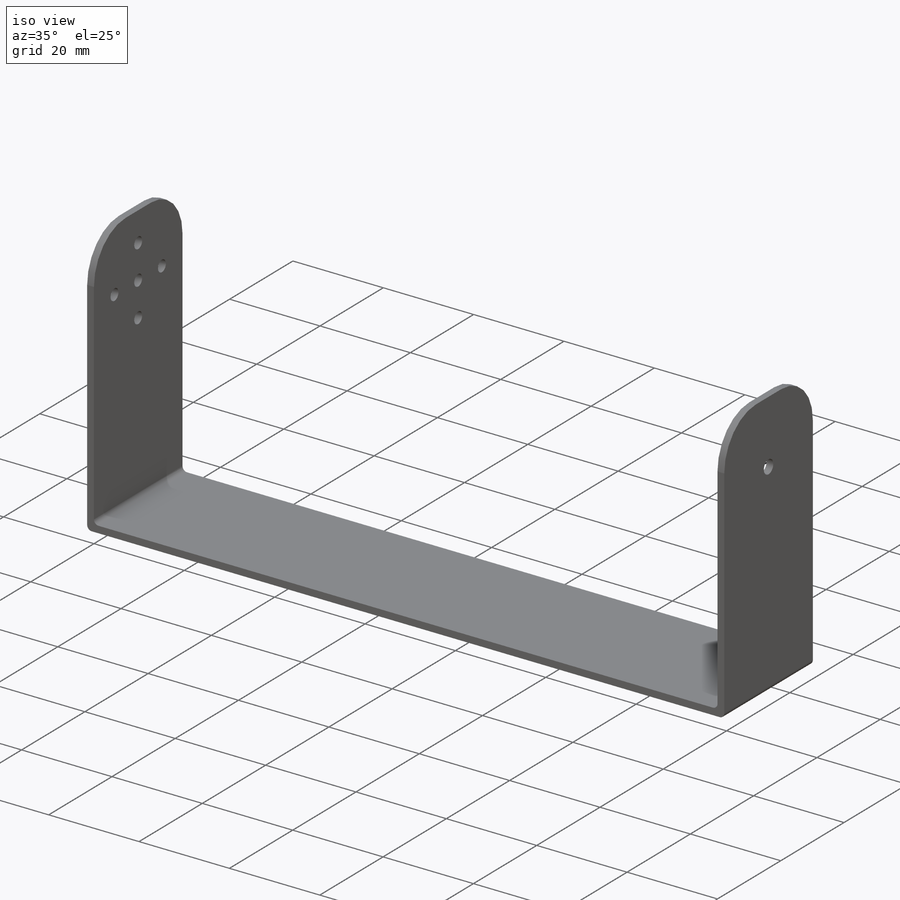
[diagram: iso view]
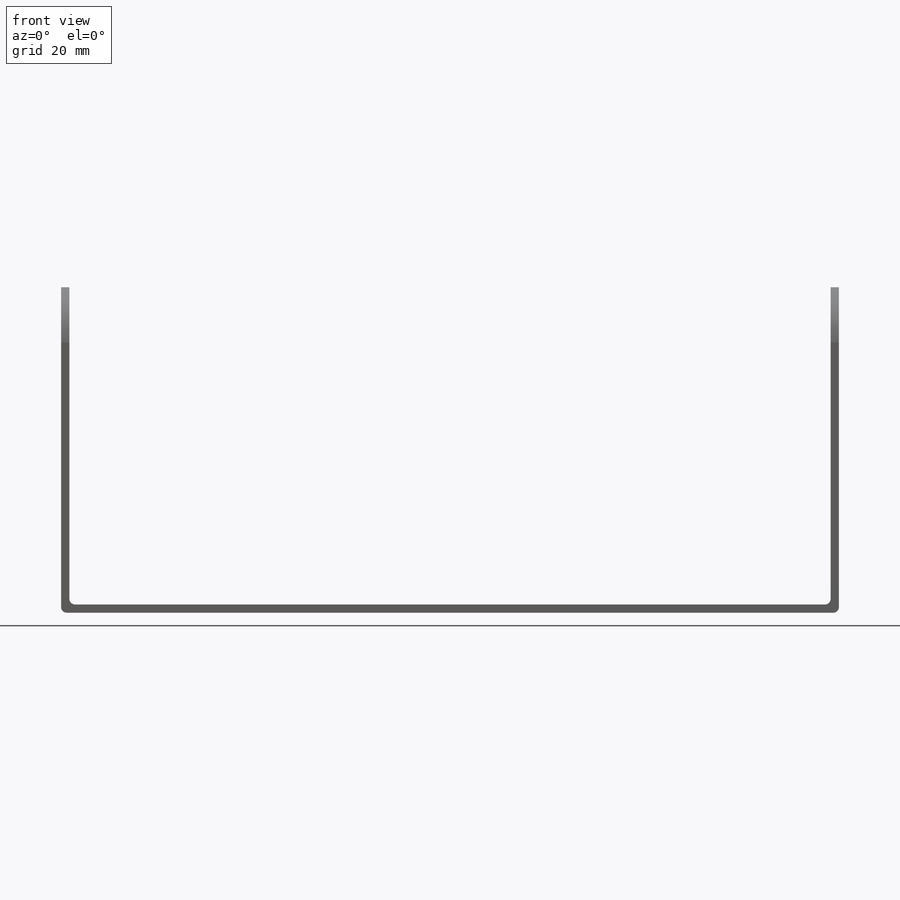
[diagram: front view]
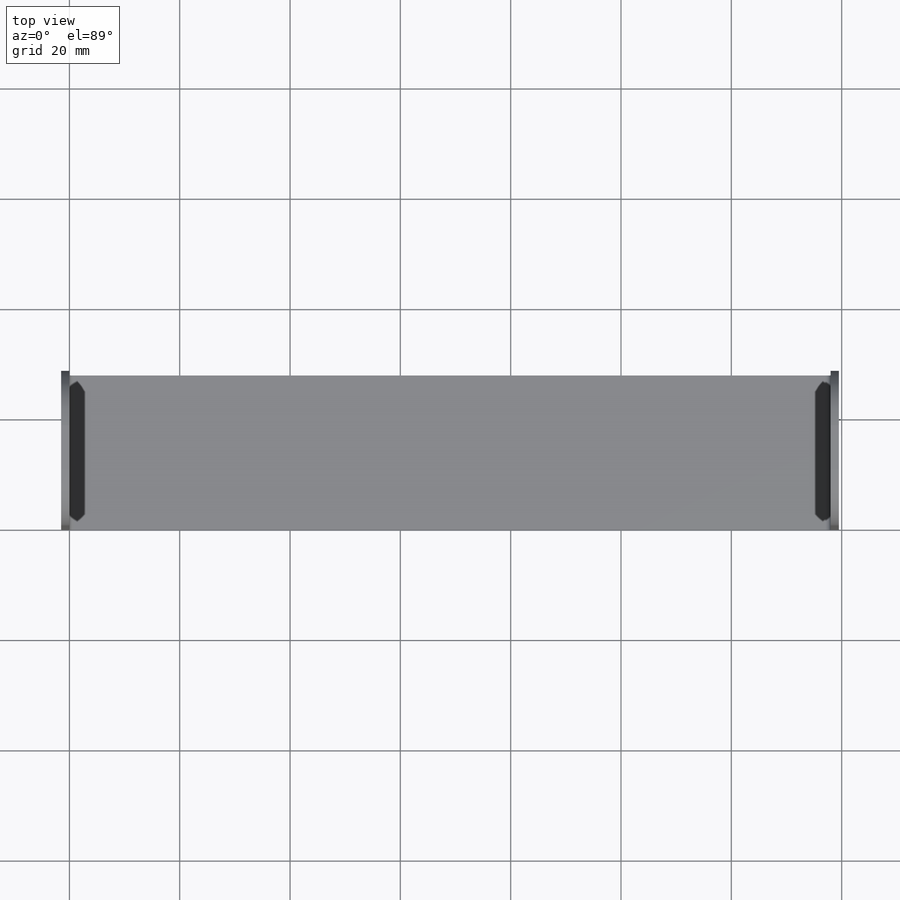
[diagram: top view]
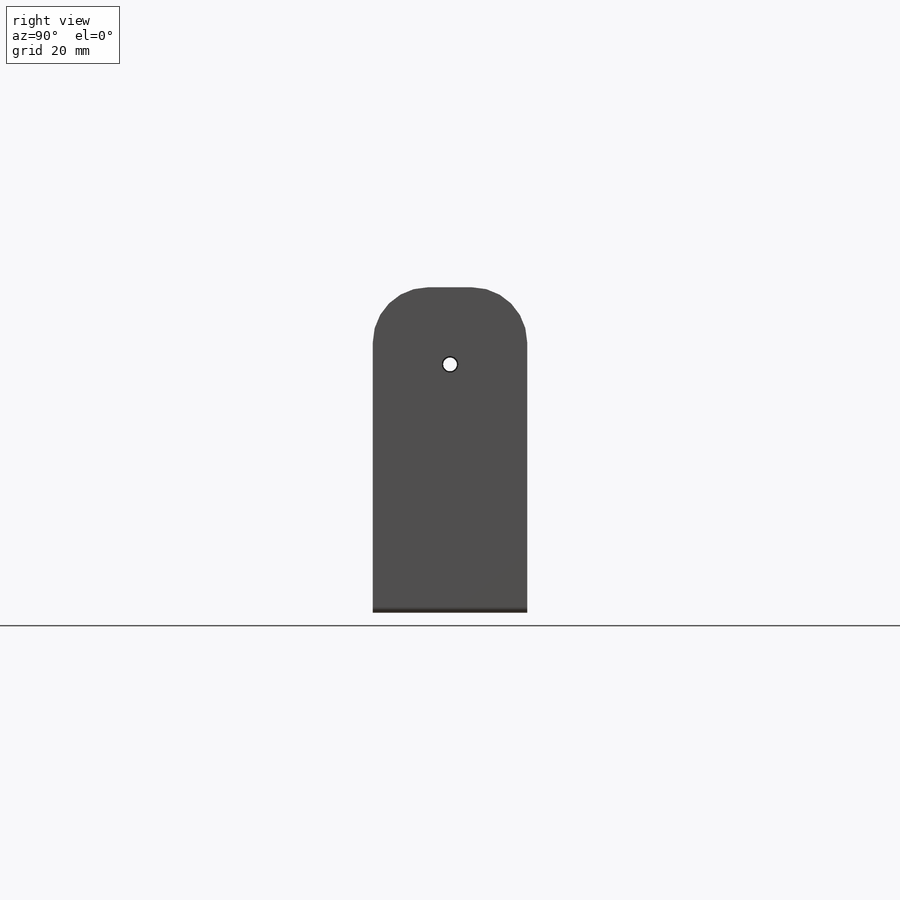
[diagram: right view]
SOLIDWORKS PART (.sldprt)
format: sldprt  version: not decoded by parser v0  size: 242,688 bytes
history: native  units: mm
features: fillet x7, sketch x5, extrude x3, cut_extrude x2, material x1 (+13 scaffold rows collapsed)
feature tree (31):
  scaffold x13  (default folders/planes/origin — collapsed)
  material  "Material <not specified>"
  sketch  "Sketch1"  dims[D1=28.0mm D2=138.0mm]
  extrude  "Boss-Extrude1"  Depth=1.5mm
  sketch  "Sketch2"  dims[D1=28.0mm D2=59.0mm]
  extrude  "Boss-Extrude2"  Depth=1.5mm
  fillet  "Fillet1"  Radius=1mm
  fillet  "Fillet2"  Radius=1mm
  fillet  "Fillet5"  Radius=10mm
  sketch  "Sketch3"  dims[c1.D1=~1.038757mm c1.D2=~1.790897mm c1.D3=~1.127417mm c1.D7=1.0mm c2.D1=14.0mm c2.D2=6.0mm c2.D3=6.0mm c2.D4=6.0mm c3.D2=7.5mm c3.D3=7.5mm c3.D1=14.0mm c3.D4=14.0mm c3.D5=7.5mm c3.D6=14.0mm c3.D7=8.0mm c3.D8=7.5mm c3.D9=8.0mm c3.D10=14.0mm]
  cut_extrude  "Cut-Extrude1"  Depth=15mm
  sketch  "Sketch4"  dims[D1=59.0mm D2=28.0mm]
  extrude  "Boss-Extrude3"  Depth=1.5mm
  fillet  "Fillet6"  Radius=1mm
  fillet  "Fillet7"  Radius=1mm
  sketch  "Sketch5"  dims[c1.D1=~2.386469mm c1.D3=1.0mm c2.D1=14.0mm c2.D2=14.0mm c2.D3=28.0mm]
  cut_extrude  "Cut-Extrude3"  Depth=31.5mm
  fillet  "Fillet10"  Radius=10mm
  fillet  "Fillet11"  Radius=10mm
decode coverage: 17 of 17 modeling features carry decoded parameters
note: ~ marks probable driven/reference dimensions
note: suppression state not decoded; provenance and decode notes live in map.json
